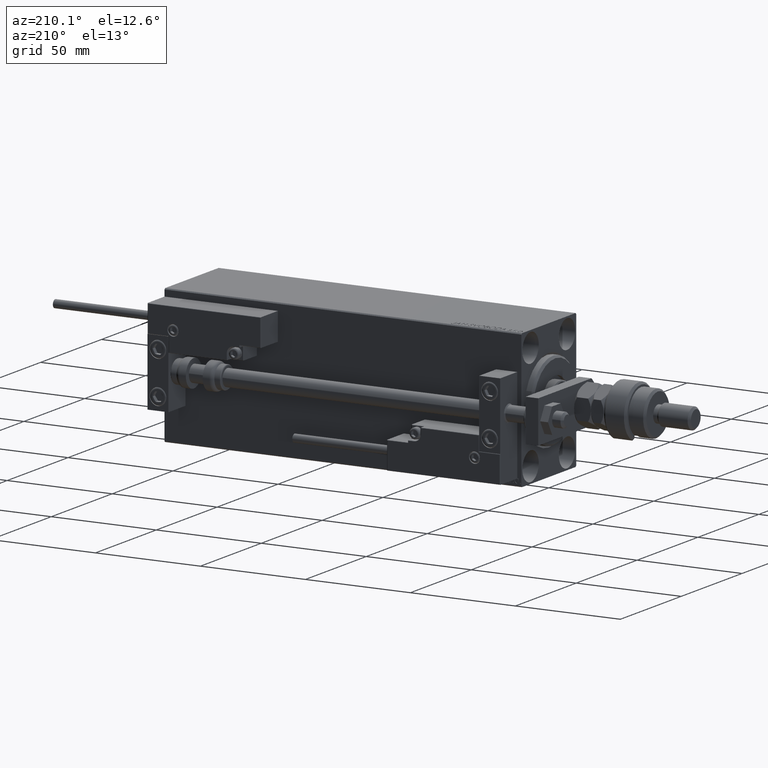
[diagram: clean part render]
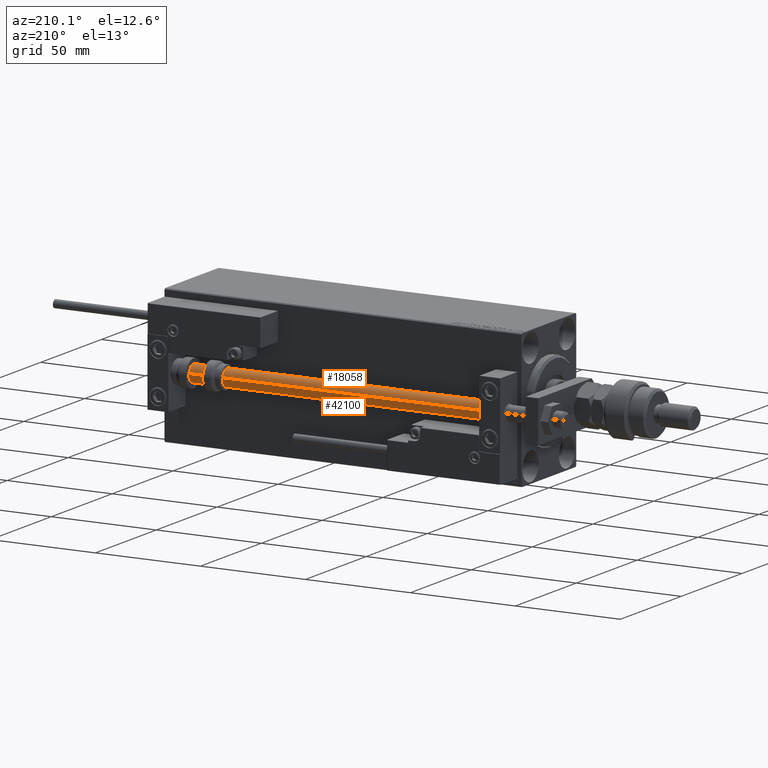
[diagram: same view with one multi-face feature highlighted, each face labeled with its STEP entity id]
A machine part, auxiliary view. The highlighted faces form ONE feature: a constant-radius fillet chain: 2 tangent blend faces with common blend radius 4 mm. The faces share edges in the B-rep.
Their STEP definitions:
[1] entity #42100 (Cylinder):
#1403 = CARTESIAN_POINT ( 'NONE',  ( -4.000000000000000000, 0.000000000000000000, 2.000000000000029310 ) ) ;
#1819 = DIRECTION ( 'NONE',  ( -0.000000000000000000, -0.000000000000000000, -1.000000000000000000 ) ) ;
#2077 = CARTESIAN_POINT ( 'NONE',  ( -4.000000000000000000, 0.000000000000000000, 170.0000000000000000 ) ) ;
#2832 = EDGE_CURVE ( 'NONE', #42134, #12860, #5173, .T. ) ;
#5173 = LINE ( 'NONE', #12965, #33948 ) ;
#5560 = CARTESIAN_POINT ( 'NONE',  ( 0.000000000000000000, 0.000000000000000000, 170.0000000000000000 ) ) ;
#5691 = ORIENTED_EDGE ( 'NONE', *, *, #30114, .F. ) ;
#7122 = DIRECTION ( 'NONE',  ( 1.000000000000000000, 0.000000000000000000, 0.000000000000000000 ) ) ;
#9850 = FACE_OUTER_BOUND ( 'NONE', #14317, .T. ) ;
#11336 = ORIENTED_EDGE ( 'NONE', *, *, #43080, .T. ) ;
#11555 = VECTOR ( 'NONE', #1819, 1000.000000000000000 ) ;
#12860 = VERTEX_POINT ( 'NONE', #20265 ) ;
#12965 = CARTESIAN_POINT ( 'NONE',  ( 4.000000000000000000, 4.898587196589412829E-16, 170.0000000000000000 ) ) ;
#14317 = EDGE_LOOP ( 'NONE', ( #26642, #5691, #11336, #46689 ) ) ;
#14625 = AXIS2_PLACEMENT_3D ( 'NONE', #43826, #15165, #7122 ) ;
#15165 = DIRECTION ( 'NONE',  ( -0.000000000000000000, -0.000000000000000000, 1.000000000000000000 ) ) ;
#17915 = CIRCLE ( 'NONE', #35900, 4.000000000000000000 ) ;
#18676 = DIRECTION ( 'NONE',  ( -0.000000000000000000, -0.000000000000000000, -1.000000000000000000 ) ) ;
#20265 = CARTESIAN_POINT ( 'NONE',  ( 4.000000000000000000, 4.898587196589412829E-16, 2.000000000000029310 ) ) ;
#20462 = DIRECTION ( 'NONE',  ( -0.000000000000000000, -0.000000000000000000, -1.000000000000000000 ) ) ;
#22859 = VERTEX_POINT ( 'NONE', #47291 ) ;
#24266 = CARTESIAN_POINT ( 'NONE',  ( 0.000000000000000000, 0.000000000000000000, 170.0000000000000000 ) ) ;
#24921 = CIRCLE ( 'NONE', #14625, 4.000000000000000000 ) ;
#26642 = ORIENTED_EDGE ( 'NONE', *, *, #2832, .F. ) ;
#28043 = DIRECTION ( 'NONE',  ( 1.000000000000000000, 0.000000000000000000, 0.000000000000000000 ) ) ;
#30114 = EDGE_CURVE ( 'NONE', #22859, #42134, #17915, .T. ) ;
#32571 = DIRECTION ( 'NONE',  ( 0.000000000000000000, 0.000000000000000000, 1.000000000000000000 ) ) ;
#33948 = VECTOR ( 'NONE', #20462, 1000.000000000000000 ) ;
#34770 = EDGE_CURVE ( 'NONE', #51338, #12860, #24921, .T. ) ;
#35282 = CYLINDRICAL_SURFACE ( 'NONE', #44852, 4.000000000000000000 ) ;
#35900 = AXIS2_PLACEMENT_3D ( 'NONE', #24266, #32571, #28043 ) ;
#42100 = ADVANCED_FACE ( 'NONE', ( #9850 ), #35282, .T. ) ;
#42134 = VERTEX_POINT ( 'NONE', #51337 ) ;
#42530 = DIRECTION ( 'NONE',  ( -1.000000000000000000, 0.000000000000000000, 0.000000000000000000 ) ) ;
#43080 = EDGE_CURVE ( 'NONE', #22859, #51338, #43599, .T. ) ;
#43599 = LINE ( 'NONE', #2077, #11555 ) ;
#43826 = CARTESIAN_POINT ( 'NONE',  ( 0.000000000000000000, 0.000000000000000000, 2.000000000000029310 ) ) ;
#44852 = AXIS2_PLACEMENT_3D ( 'NONE', #5560, #18676, #42530 ) ;
#46689 = ORIENTED_EDGE ( 'NONE', *, *, #34770, .T. ) ;
#47291 = CARTESIAN_POINT ( 'NONE',  ( -4.000000000000000000, 0.000000000000000000, 170.0000000000000000 ) ) ;
#51337 = CARTESIAN_POINT ( 'NONE',  ( 4.000000000000000000, 4.898587196589412829E-16, 170.0000000000000000 ) ) ;
#51338 = VERTEX_POINT ( 'NONE', #1403 ) ;
[2] entity #18058 (Cylinder):
#1403 = CARTESIAN_POINT ( 'NONE',  ( -4.000000000000000000, 0.000000000000000000, 2.000000000000029310 ) ) ;
#1819 = DIRECTION ( 'NONE',  ( -0.000000000000000000, -0.000000000000000000, -1.000000000000000000 ) ) ;
#2077 = CARTESIAN_POINT ( 'NONE',  ( -4.000000000000000000, 0.000000000000000000, 170.0000000000000000 ) ) ;
#2832 = EDGE_CURVE ( 'NONE', #42134, #12860, #5173, .T. ) ;
#5173 = LINE ( 'NONE', #12965, #33948 ) ;
#7109 = FACE_OUTER_BOUND ( 'NONE', #40428, .T. ) ;
#10057 = ORIENTED_EDGE ( 'NONE', *, *, #35660, .F. ) ;
#10234 = ORIENTED_EDGE ( 'NONE', *, *, #43080, .F. ) ;
#10591 = ORIENTED_EDGE ( 'NONE', *, *, #44389, .T. ) ;
#11178 = AXIS2_PLACEMENT_3D ( 'NONE', #19433, #23460, #40055 ) ;
#11511 = AXIS2_PLACEMENT_3D ( 'NONE', #42842, #39082, #29746 ) ;
#11555 = VECTOR ( 'NONE', #1819, 1000.000000000000000 ) ;
#12860 = VERTEX_POINT ( 'NONE', #20265 ) ;
#12965 = CARTESIAN_POINT ( 'NONE',  ( 4.000000000000000000, 4.898587196589412829E-16, 170.0000000000000000 ) ) ;
#18058 = ADVANCED_FACE ( 'NONE', ( #7109 ), #27224, .T. ) ;
#19433 = CARTESIAN_POINT ( 'NONE',  ( 0.000000000000000000, 0.000000000000000000, 170.0000000000000000 ) ) ;
#20265 = CARTESIAN_POINT ( 'NONE',  ( 4.000000000000000000, 4.898587196589412829E-16, 2.000000000000029310 ) ) ;
#20462 = DIRECTION ( 'NONE',  ( -0.000000000000000000, -0.000000000000000000, -1.000000000000000000 ) ) ;
#22859 = VERTEX_POINT ( 'NONE', #47291 ) ;
#23460 = DIRECTION ( 'NONE',  ( -0.000000000000000000, -0.000000000000000000, -1.000000000000000000 ) ) ;
#26976 = CARTESIAN_POINT ( 'NONE',  ( 0.000000000000000000, 0.000000000000000000, 170.0000000000000000 ) ) ;
#27224 = CYLINDRICAL_SURFACE ( 'NONE', #11178, 4.000000000000000000 ) ;
#27549 = CIRCLE ( 'NONE', #40336, 4.000000000000000000 ) ;
#29746 = DIRECTION ( 'NONE',  ( 1.000000000000000000, 0.000000000000000000, 0.000000000000000000 ) ) ;
#33931 = DIRECTION ( 'NONE',  ( 0.000000000000000000, 0.000000000000000000, 1.000000000000000000 ) ) ;
#33948 = VECTOR ( 'NONE', #20462, 1000.000000000000000 ) ;
#35660 = EDGE_CURVE ( 'NONE', #42134, #22859, #27549, .T. ) ;
#39082 = DIRECTION ( 'NONE',  ( -0.000000000000000000, -0.000000000000000000, 1.000000000000000000 ) ) ;
#40055 = DIRECTION ( 'NONE',  ( -1.000000000000000000, 0.000000000000000000, 0.000000000000000000 ) ) ;
#40336 = AXIS2_PLACEMENT_3D ( 'NONE', #26976, #33931, #50249 ) ;
#40428 = EDGE_LOOP ( 'NONE', ( #10057, #40739, #10591, #10234 ) ) ;
#40739 = ORIENTED_EDGE ( 'NONE', *, *, #2832, .T. ) ;
#42134 = VERTEX_POINT ( 'NONE', #51337 ) ;
#42842 = CARTESIAN_POINT ( 'NONE',  ( 0.000000000000000000, 0.000000000000000000, 2.000000000000029310 ) ) ;
#43080 = EDGE_CURVE ( 'NONE', #22859, #51338, #43599, .T. ) ;
#43599 = LINE ( 'NONE', #2077, #11555 ) ;
#44389 = EDGE_CURVE ( 'NONE', #12860, #51338, #52544, .T. ) ;
#47291 = CARTESIAN_POINT ( 'NONE',  ( -4.000000000000000000, 0.000000000000000000, 170.0000000000000000 ) ) ;
#50249 = DIRECTION ( 'NONE',  ( 1.000000000000000000, 0.000000000000000000, 0.000000000000000000 ) ) ;
#51337 = CARTESIAN_POINT ( 'NONE',  ( 4.000000000000000000, 4.898587196589412829E-16, 170.0000000000000000 ) ) ;
#51338 = VERTEX_POINT ( 'NONE', #1403 ) ;
#52544 = CIRCLE ( 'NONE', #11511, 4.000000000000000000 ) ;